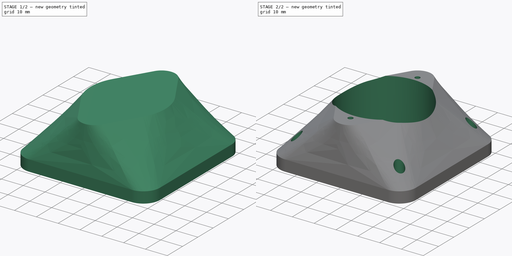
[diagram: build sequence overview — one tinted view per stage of 2, left to right]
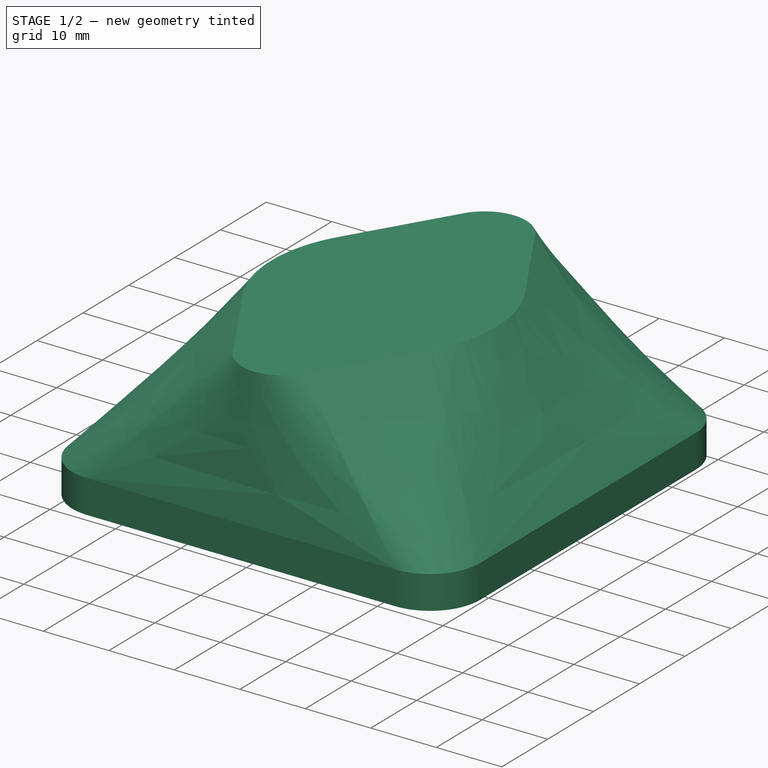
[diagram: stage 1 of 2 — iso view after this stage's code; geometry added in this stage tinted green]
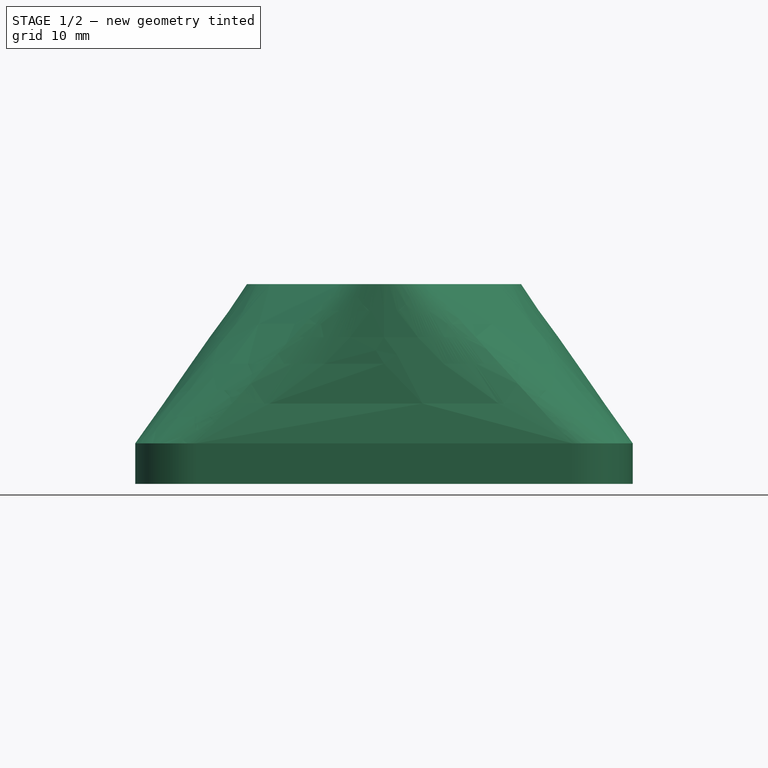
[diagram: stage 1 of 2 — front view after this stage's code; geometry added in this stage tinted green]
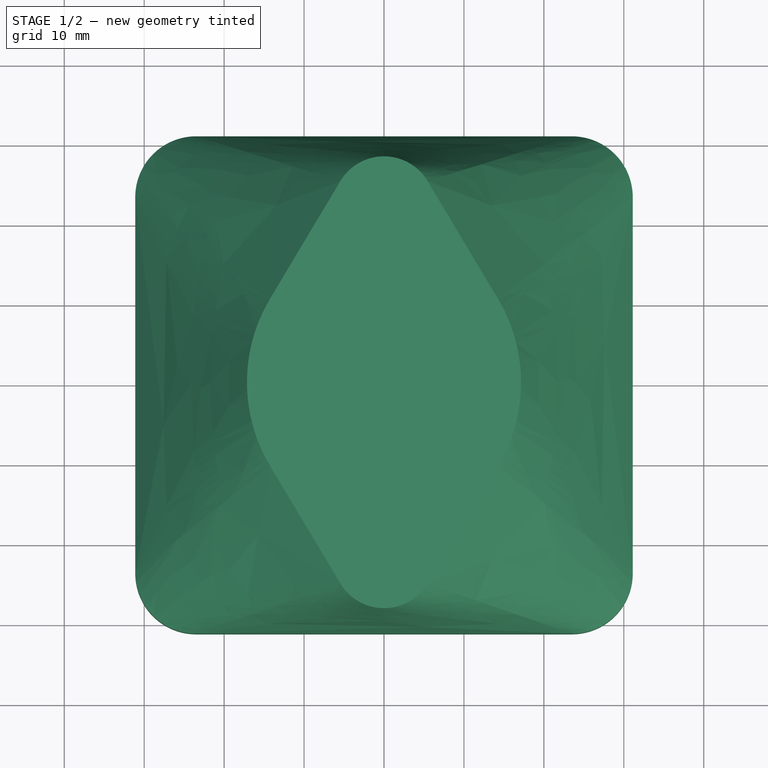
[diagram: stage 1 of 2 — top view after this stage's code; geometry added in this stage tinted green]
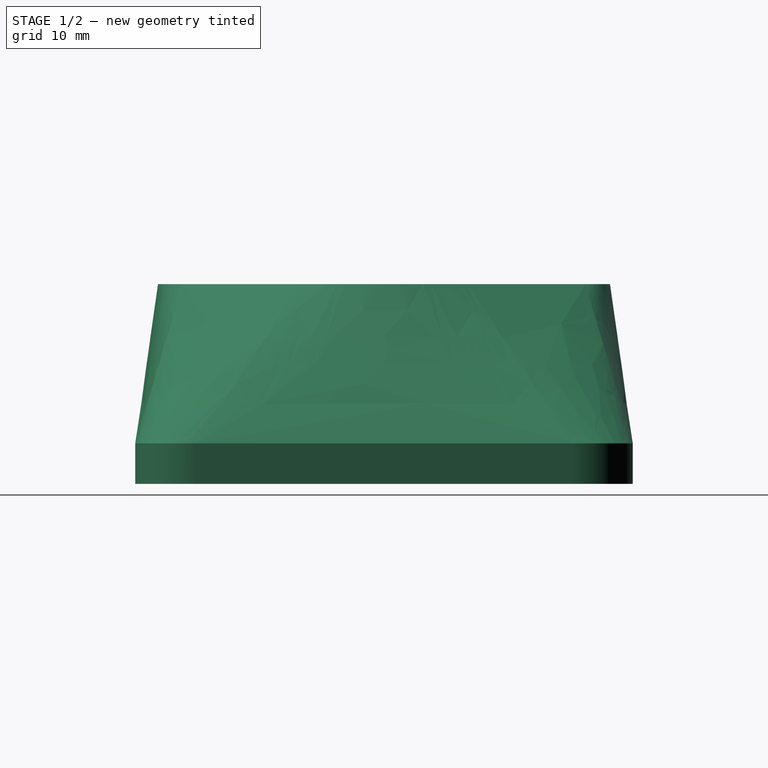
[diagram: stage 1 of 2 — right view after this stage's code; geometry added in this stage tinted green]
FCSTD DOCUMENT  (FreeCAD 0.21R32821 (Git))
Label: NewMotorAdapter
License: All rights reserved
LicenseURL: http://en.wikipedia.org/wiki/All_rights_reserved
objects: Sketcher::SketchObject×5, PartDesign::Pocket×2, PartDesign::Pad×1, PartDesign::Plane×1, PartDesign::AdditiveLoft×1, PartDesign::Body×1
note: 15 computed .brp shape members not serialized (recipe doc carries the construction recipe); baked Part::Feature solids carry a one-line shape summary decoded from their .brp

FEATURE [Sketcher::SketchObject] Sketch
  FullyConstrained = true
  MapMode = 5
  Support = -> [XY_Plane]
  sketch-geometry (15):
    g0: Circle CenterX=0 CenterY=0 CenterZ=0 NormalX=0 NormalY=0 NormalZ=1 AngleXU=0 Radius=19.5
    g1: ArcOfCircle CenterX=-23.5 CenterY=-23.5 CenterZ=0 NormalX=0 NormalY=0 NormalZ=1 AngleXU=0 Radius=7.62 StartAngle=3.14159 EndAngle=4.71239
    g2: LineSegment StartX=-31.12 StartY=-23.5 StartZ=0 EndX=-31.12 EndY=23.5 EndZ=0
    g3: ArcOfCircle CenterX=-23.5 CenterY=23.5 CenterZ=0 NormalX=0 NormalY=0 NormalZ=1 AngleXU=0 Radius=7.62 StartAngle=1.5708 EndAngle=3.14159
    g4: LineSegment StartX=-23.5 StartY=31.12 StartZ=0 EndX=23.5 EndY=31.12 EndZ=0
    g5: ArcOfCircle CenterX=23.5 CenterY=23.5 CenterZ=0 NormalX=0 NormalY=0 NormalZ=1 AngleXU=0 Radius=7.62 StartAngle=2e-16 EndAngle=1.5708
    g6: LineSegment StartX=31.12 StartY=23.5 StartZ=0 EndX=31.12 EndY=-23.5 EndZ=0
    g7: ArcOfCircle CenterX=23.5 CenterY=-23.5 CenterZ=0 NormalX=0 NormalY=0 NormalZ=1 AngleXU=0 Radius=7.62 StartAngle=4.71239 EndAngle=6.28319
    g8: LineSegment StartX=23.5 StartY=-31.12 StartZ=0 EndX=-23.5 EndY=-31.12 EndZ=0
    g9: GeomPoint X=-31.12 Y=-31.12 Z=0
    g10: GeomPoint X=31.12 Y=31.12 Z=0
    g11: Circle CenterX=-23.5 CenterY=23.5 CenterZ=0 NormalX=0 NormalY=0 NormalZ=1 AngleXU=0 Radius=2.2225
    g12: Circle CenterX=23.5 CenterY=23.5 CenterZ=0 NormalX=0 NormalY=0 NormalZ=1 AngleXU=0 Radius=2.2225
    g13: Circle CenterX=23.5 CenterY=-23.5 CenterZ=0 NormalX=0 NormalY=0 NormalZ=1 AngleXU=0 Radius=2.2225
    g14: Circle CenterX=-23.5 CenterY=-23.5 CenterZ=0 NormalX=0 NormalY=0 NormalZ=1 AngleXU=0 Radius=2.2225
  constraints (33):
    c: Coincident(g0,g-1)
    c: Tangent(g1,g2) = 1.5708
    c: Tangent(g2,g3) = 1.5708
    c: Tangent(g3,g4) = 1.5708
    c: Tangent(g4,g5) = 1.5708
    c: Tangent(g5,g6) = 1.5708
    c: Tangent(g6,g7) = 1.5708
    c: Tangent(g7,g8) = 1.5708
    c: Tangent(g8,g1) = 1.5708
    c: Horizontal(g4)
    c: Horizontal(g8)
    c: Vertical(g2)
    c: Vertical(g6)
    c: Equal(g1,g3)
    c: Equal(g3,g5)
    c: Equal(g5,g7)
    c: PointOnObject(g9,g2)
    c: PointOnObject(g9,g8)
    c: PointOnObject(g10,g4)
    c: PointOnObject(g10,g6)
    c: Symmetric(g5,g1,g0)
    c: Equal(g2,g4)
    c: Coincident(g11,g3)
    c: Coincident(g12,g5)
    c: Coincident(g13,g7)
    c: Coincident(g14,g1)
    c: Equal(g14,g11)
    c: Equal(g11,g12)
    c: Equal(g13,g12)
    c: Diameter(g12) = 4.445
    c: Distance(g3,g5) = 47
    c: Radius(g5) = 7.62
    c: Diameter(g0) = 39
FEATURE [PartDesign::Pad] Pad
  Direction = (0,0,1)
  Length = 5.08
  Length2 = 10
  Profile = -> Sketch
  ReferenceAxis = -> Sketch [N_Axis]
  Type = 0
FEATURE [PartDesign::Plane] DatumPlane
  AttachmentOffset = pos=(0,0,-25) rot=(0,0,1;0rad)
  Length = 60
  MapMode = 5
  Placement = pos=(0,0,25) rot=(1,0,0;3.14159rad)
  ResizeMode = 0
  Support = -> [Pad]
  Width = 60
FEATURE [Sketcher::SketchObject] Sketch028
  FullyConstrained = true
  MapMode = 5
  Placement = pos=(0,0,25) rot=(1,0,0;3.14159rad)
  Support = -> [DatumPlane]
  sketch-geometry (15):
    g0: ArcOfCircle CenterX=3.175 CenterY=0 CenterZ=0 NormalX=0 NormalY=0 NormalZ=1 AngleXU=0 Radius=20.32 StartAngle=2.60295 EndAngle=3.68024
    g1: ArcOfCircle CenterX=-3.175 CenterY=0 CenterZ=0 NormalX=0 NormalY=0 NormalZ=1 AngleXU=0 Radius=20.32 StartAngle=5.74454 EndAngle=6.82183
    g2: ArcOfCircle CenterX=0 CenterY=21.9203 CenterZ=0 NormalX=0 NormalY=0 NormalZ=1 AngleXU=0 Radius=6.35 StartAngle=0.538647 EndAngle=2.60295
    g3: ArcOfCircle CenterX=0 CenterY=-21.9203 CenterZ=0 NormalX=0 NormalY=0 NormalZ=1 AngleXU=0 Radius=6.35 StartAngle=3.68024 EndAngle=5.74454
    g4: LineSegment StartX=0 StartY=21.9203 StartZ=0 EndX=-21.9203 EndY=0 EndZ=0
    g5: LineSegment StartX=-21.9203 StartY=0 StartZ=0 EndX=0 EndY=-21.9203 EndZ=0
    g6: LineSegment StartX=0 StartY=-21.9203 StartZ=0 EndX=21.9203 EndY=0 EndZ=0
    g7: LineSegment StartX=21.9203 StartY=0 StartZ=0 EndX=0 EndY=21.9203 EndZ=0
    g8: LineSegment StartX=-5.45086 StartY=25.1777 StartZ=0 EndX=-14.2678 EndY=10.4236 EndZ=0
    g9: LineSegment StartX=-14.2678 StartY=-10.4236 StartZ=0 EndX=-5.45086 EndY=-25.1777 EndZ=0
    g10: LineSegment StartX=5.45086 StartY=-25.1777 StartZ=0 EndX=14.2678 EndY=-10.4236 EndZ=0
    g11: LineSegment StartX=14.2678 StartY=10.4236 StartZ=0 EndX=5.45086 EndY=25.1777 EndZ=0
    g12: Circle CenterX=0 CenterY=21.9203 CenterZ=0 NormalX=0 NormalY=0 NormalZ=1 AngleXU=0 Radius=2.25
    g13: Circle CenterX=0 CenterY=-21.9203 CenterZ=0 NormalX=0 NormalY=0 NormalZ=1 AngleXU=0 Radius=2.25
    g14: Circle CenterX=0 CenterY=0 CenterZ=0 NormalX=0 NormalY=0 NormalZ=1 AngleXU=0 Radius=11.125
  constraints (35):
    c: PointOnObject(g0,g-1)
    c: PointOnObject(g2,g-2)
    c: PointOnObject(g3,g-2)
    c: Coincident(g4,g2)
    c: PointOnObject(g4,g-1)
    c: Coincident(g5,g4)
    c: Coincident(g5,g3)
    c: Coincident(g6,g3)
    c: Coincident(g7,g6)
    c: Coincident(g7,g2)
    c: Equal(g5,g4)
    c: Equal(g4,g7)
    c: Equal(g7,g6)
    c: Perpendicular(g6,g7)
    c: Distance(g4) = 31
    c: Tangent(g11,g2) = -1.5708
    c: Tangent(g8,g2) = -1.5708
    c: Tangent(g8,g0) = -1.5708
    c: Tangent(g9,g0) = -1.5708
    c: Tangent(g9,g3) = -1.5708
    c: Tangent(g10,g3) = -1.5708
    c: Tangent(g10,g1) = -1.5708
    c: Tangent(g11,g1) = -1.5708
    c: Symmetric(g1,g0,g-1)
    c: Coincident(g12,g2)
    c: Coincident(g13,g3)
    c: Equal(g13,g12)
    c: Diameter(g12) = 4.5
    c: Equal(g2,g3)
    c: Radius(g2) = 6.35
    c: Coincident(g14,g-1)
    c: Diameter(g14) = 22.25
    c: Equal(g1,g0)
    c: Radius(g0) = 20.32
    c: Distance(g1,g14) = 3.175
FEATURE [Sketcher::SketchObject] Sketch029
  ExternalGeometry = -> [Pad]
  FullyConstrained = true
  MapMode = 5
  Placement = pos=(0,0,5.08) rot=(0,0,1;0rad)
  Support = -> [Pad]
  sketch-geometry (10):
    g0: ArcOfCircle CenterX=-23.5 CenterY=-23.5 CenterZ=0 NormalX=0 NormalY=0 NormalZ=1 AngleXU=0 Radius=7.62 StartAngle=3.14159 EndAngle=4.71239
    g1: LineSegment StartX=-31.12 StartY=-23.5 StartZ=0 EndX=-31.12 EndY=23.5 EndZ=0
    g2: ArcOfCircle CenterX=-23.5 CenterY=23.5 CenterZ=0 NormalX=0 NormalY=0 NormalZ=1 AngleXU=0 Radius=7.62 StartAngle=1.5708 EndAngle=3.14159
    g3: LineSegment StartX=-23.5 StartY=31.12 StartZ=0 EndX=23.5 EndY=31.12 EndZ=0
    g4: ArcOfCircle CenterX=23.5 CenterY=23.5 CenterZ=0 NormalX=0 NormalY=0 NormalZ=1 AngleXU=0 Radius=7.62 StartAngle=9.1e-15 EndAngle=1.5708
    g5: LineSegment StartX=31.12 StartY=23.5 StartZ=0 EndX=31.12 EndY=-23.5 EndZ=0
    g6: ArcOfCircle CenterX=23.5 CenterY=-23.5 CenterZ=0 NormalX=0 NormalY=0 NormalZ=1 AngleXU=0 Radius=7.62 StartAngle=4.71239 EndAngle=6.28319
    g7: LineSegment StartX=23.5 StartY=-31.12 StartZ=0 EndX=-23.5 EndY=-31.12 EndZ=0
    g8: GeomPoint X=-31.12 Y=-31.12 Z=0
    g9: GeomPoint X=31.12 Y=31.12 Z=0
  constraints (22):
    c: Tangent(g0,g1) = 1.5708
    c: Tangent(g1,g2) = 1.5708
    c: Tangent(g2,g3) = 1.5708
    c: Tangent(g3,g4) = 1.5708
    c: Tangent(g4,g5) = 1.5708
    c: Tangent(g5,g6) = 1.5708
    c: Tangent(g6,g7) = 1.5708
    c: Tangent(g7,g0) = 1.5708
    c: Horizontal(g3)
    c: Horizontal(g7)
    c: Vertical(g1)
    c: Vertical(g5)
    c: Equal(g0,g2)
    c: Equal(g2,g4)
    c: Equal(g4,g6)
    c: PointOnObject(g8,g1)
    c: PointOnObject(g8,g7)
    c: PointOnObject(g9,g3)
    c: PointOnObject(g9,g5)
    c: Coincident(g4,g-3)
    c: Coincident(g-4,g0)
    c: Equal(g-3,g4)
FEATURE [PartDesign::AdditiveLoft] AdditiveLoft
  BaseFeature = -> Pad
  Closed = false
  Profile = -> Sketch029
  Ruled = false
  Sections = -> [Sketch028]
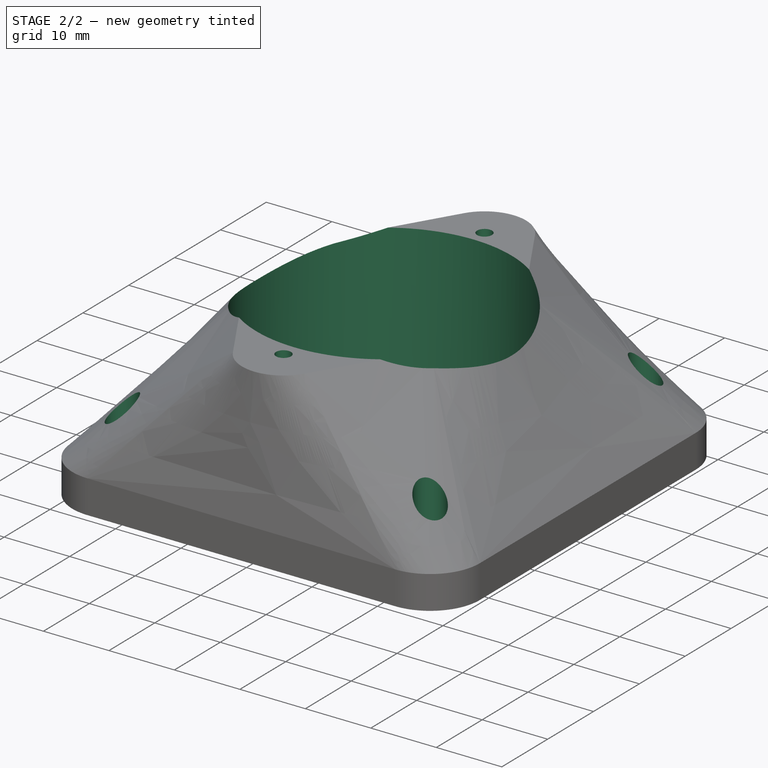
[diagram: stage 2 of 2 — iso view after this stage's code; geometry added in this stage tinted green]
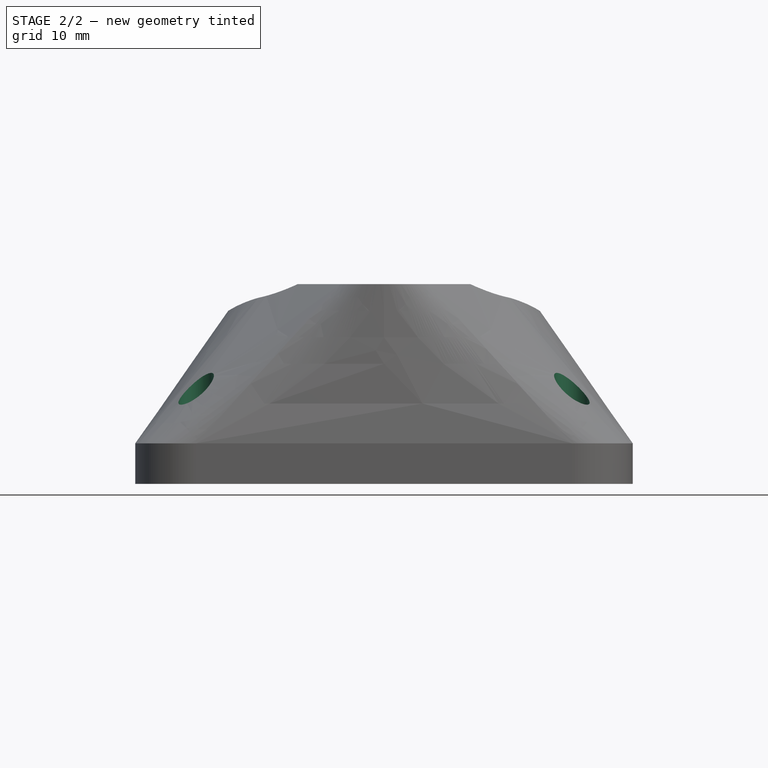
[diagram: stage 2 of 2 — front view after this stage's code; geometry added in this stage tinted green]
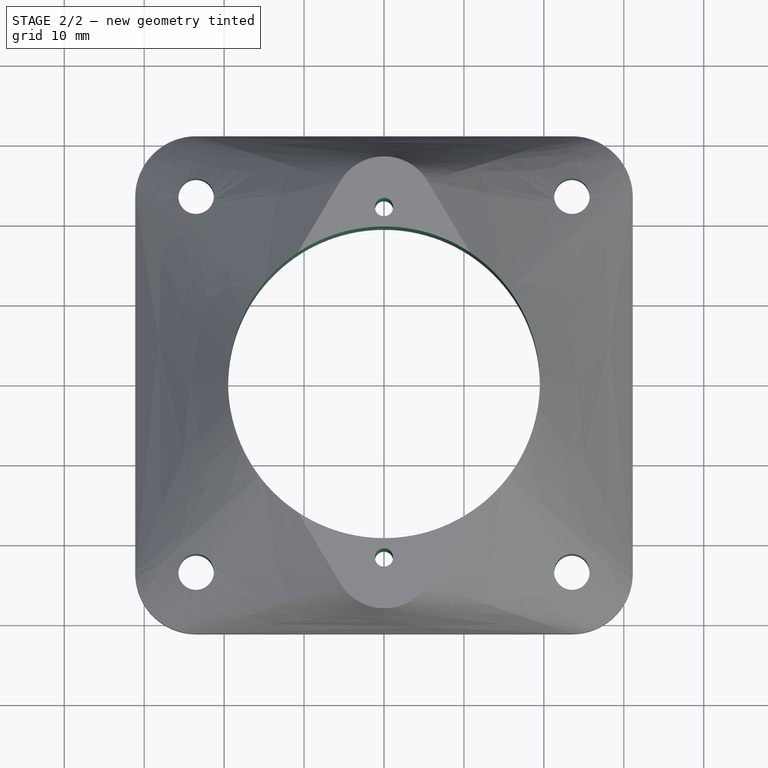
[diagram: stage 2 of 2 — top view after this stage's code; geometry added in this stage tinted green]
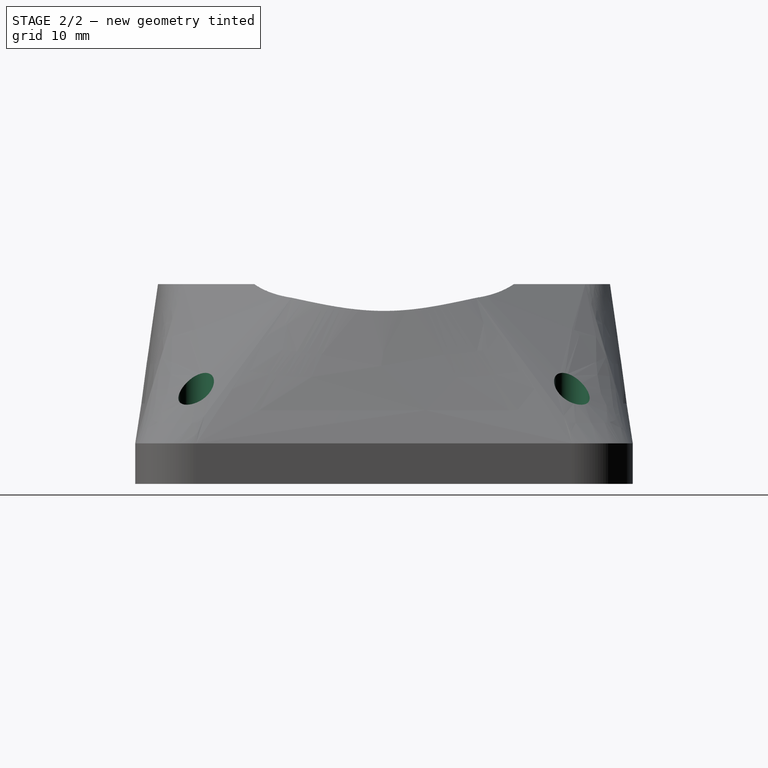
[diagram: stage 2 of 2 — right view after this stage's code; geometry added in this stage tinted green]
FEATURE [Sketcher::SketchObject] Sketch030
  ExternalGeometry = -> [AdditiveLoft]
  FullyConstrained = true
  MapMode = 5
  Placement = pos=(0,0,5.08) rot=(1,0,0;3.14159rad)
  Support = -> [AdditiveLoft]
  sketch-geometry (5):
    g0: Circle CenterX=23.5 CenterY=23.5 CenterZ=0 NormalX=0 NormalY=0 NormalZ=1 AngleXU=0 Radius=2.2225
    g1: Circle CenterX=0 CenterY=0 CenterZ=0 NormalX=0 NormalY=0 NormalZ=1 AngleXU=0 Radius=19.5
    g2: Circle CenterX=-23.5 CenterY=23.5 CenterZ=0 NormalX=0 NormalY=0 NormalZ=1 AngleXU=0 Radius=2.2225
    g3: Circle CenterX=-23.5 CenterY=-23.5 CenterZ=0 NormalX=0 NormalY=0 NormalZ=1 AngleXU=0 Radius=2.2225
    g4: Circle CenterX=23.5 CenterY=-23.5 CenterZ=0 NormalX=0 NormalY=0 NormalZ=1 AngleXU=0 Radius=2.2225
  constraints (10):
    c: Coincident(g0,g-3)
    c: Coincident(g1,g-4)
    c: Coincident(g2,g-5)
    c: Coincident(g3,g-6)
    c: Coincident(g4,g-7)
    c: Equal(g0,g4)
    c: Equal(g4,g3)
    c: Equal(g3,g2)
    c: Equal(g2,g-5)
    c: Equal(g1,g-4)
FEATURE [PartDesign::Pocket] Pocket
  BaseFeature = -> AdditiveLoft
  Direction = (0,0,1)
  Length = 5
  Length2 = 5
  Profile = -> Sketch030
  ReferenceAxis = -> Sketch030 [N_Axis]
  Type = 1
FEATURE [Sketcher::SketchObject] Sketch031
  FullyConstrained = true
  MapMode = 5
  Placement = pos=(0,0,25) rot=(0,0,1;0rad)
  Support = -> [Pocket]
  sketch-geometry (2):
    g0: Circle CenterX=0 CenterY=21.9202 CenterZ=0 NormalX=0 NormalY=0 NormalZ=1 AngleXU=0 Radius=1.143
    g1: Circle CenterX=0 CenterY=-21.9202 CenterZ=0 NormalX=0 NormalY=0 NormalZ=1 AngleXU=0 Radius=1.143
  constraints (5):
    c: PointOnObject(g0,g-2)
    c: Equal(g1,g0)
    c: Distance(g1,g0) = 43.8404
    c: Diameter(g0) = 2.286
    c: Symmetric(g0,g1,g-1)
FEATURE [PartDesign::Pocket] Pocket001
  BaseFeature = -> Pocket
  Direction = (0,0,-1)
  Length = 5
  Length2 = 5
  Profile = -> Sketch031
  ReferenceAxis = -> Sketch031 [N_Axis]
  Type = 1
FEATURE [PartDesign::Body] Body
  Group = -> [Sketch,Pad,DatumPlane,Sketch028,Sketch029,AdditiveLoft,Sketch030,Pocket,Sketch031,Pocket001]
  Origin = -> Origin
  Tip = -> Pocket001
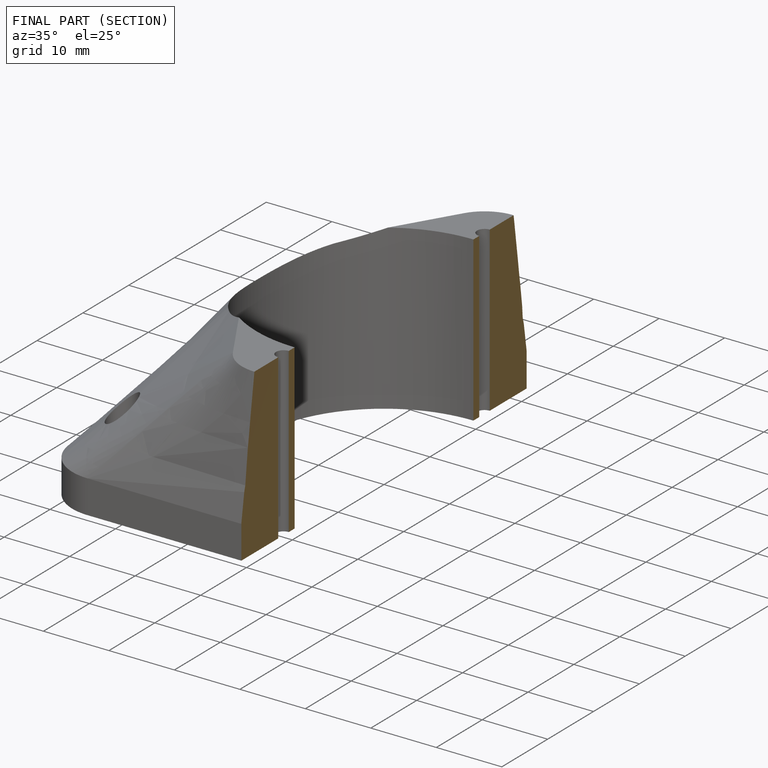
[diagram: finished part — half-section view (interior)]
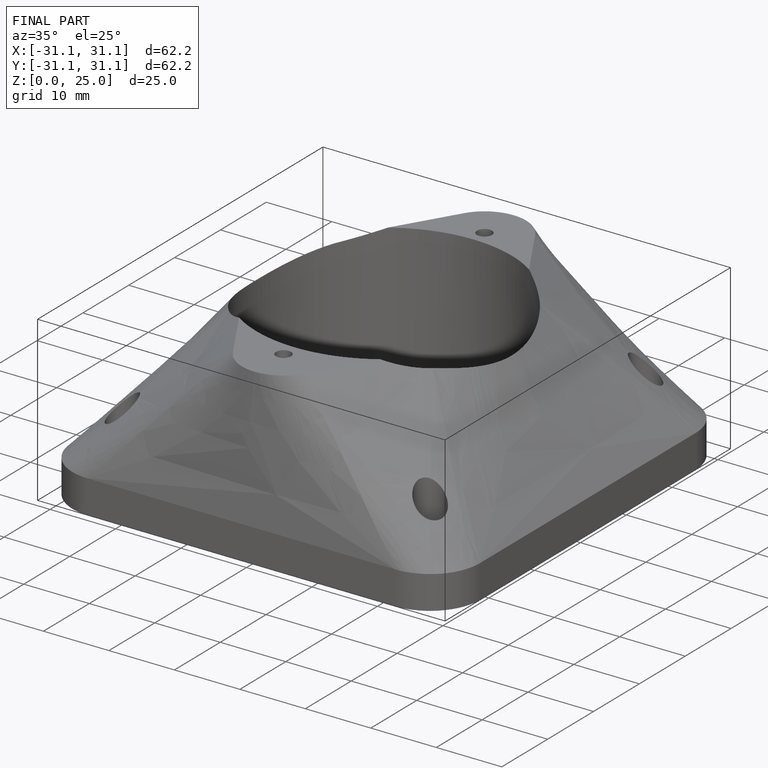
[diagram: finished part — iso view with bounding-box wireframe]
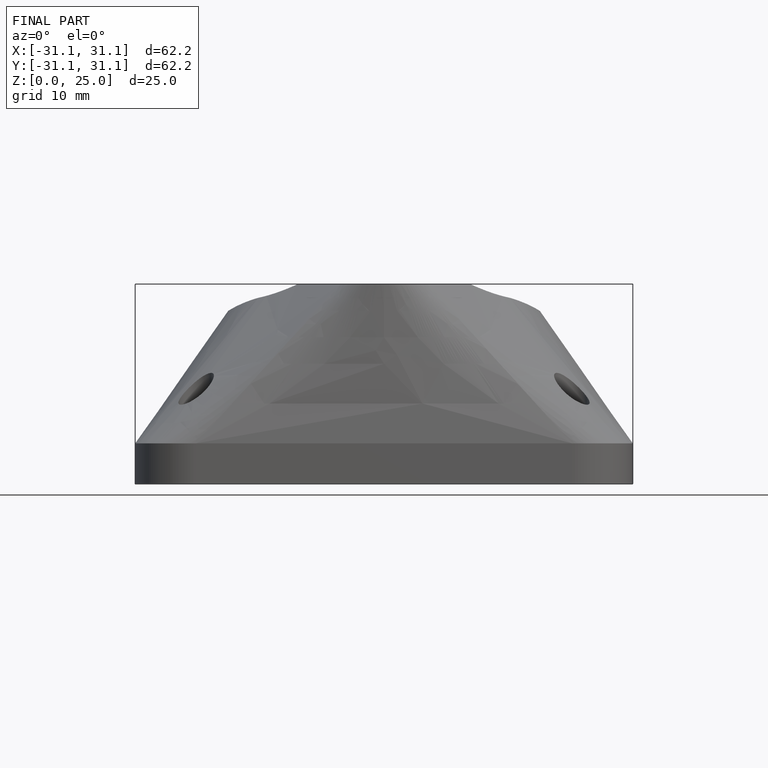
[diagram: finished part — front view with bounding-box wireframe]
